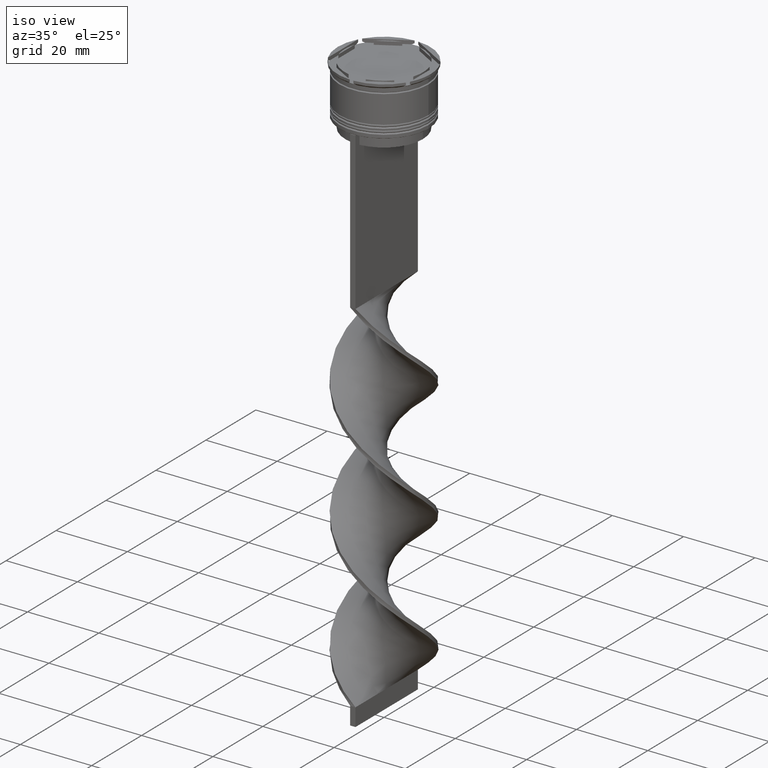
[diagram: clean part render]
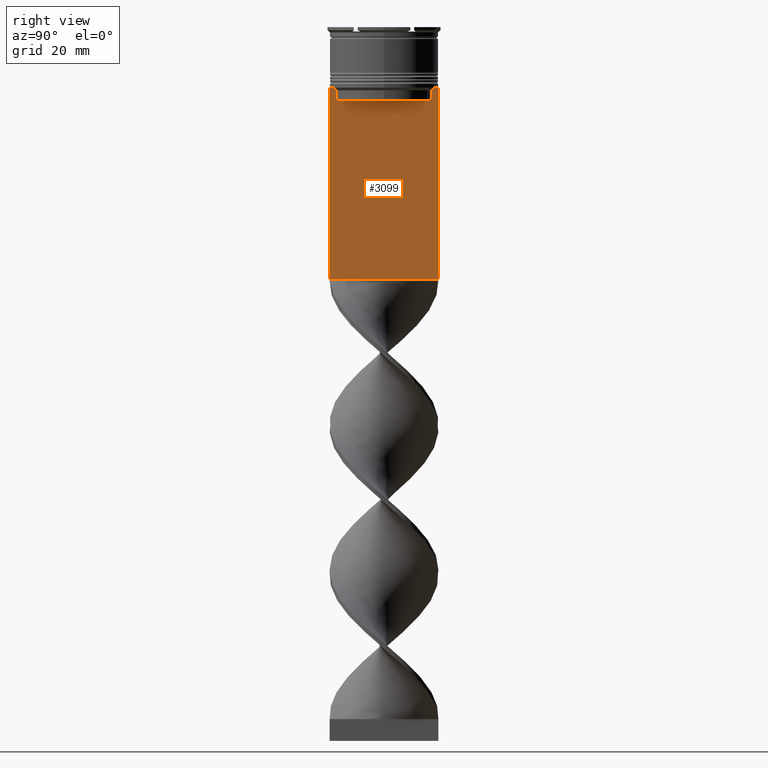
[diagram: tour spotlight — one face highlighted and labeled with its STEP entity id]
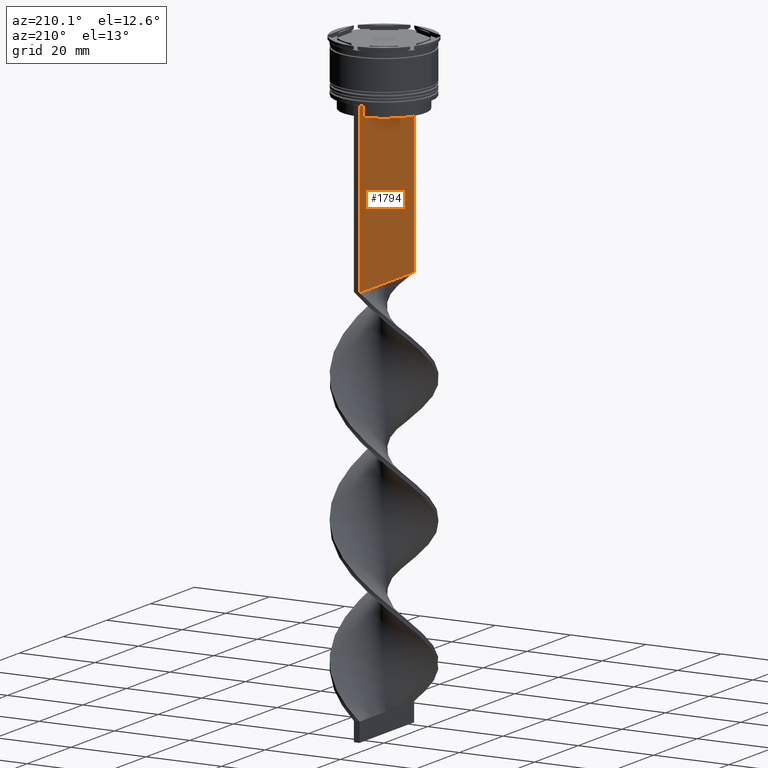
[diagram: tour spotlight — one face highlighted and labeled with its STEP entity id]
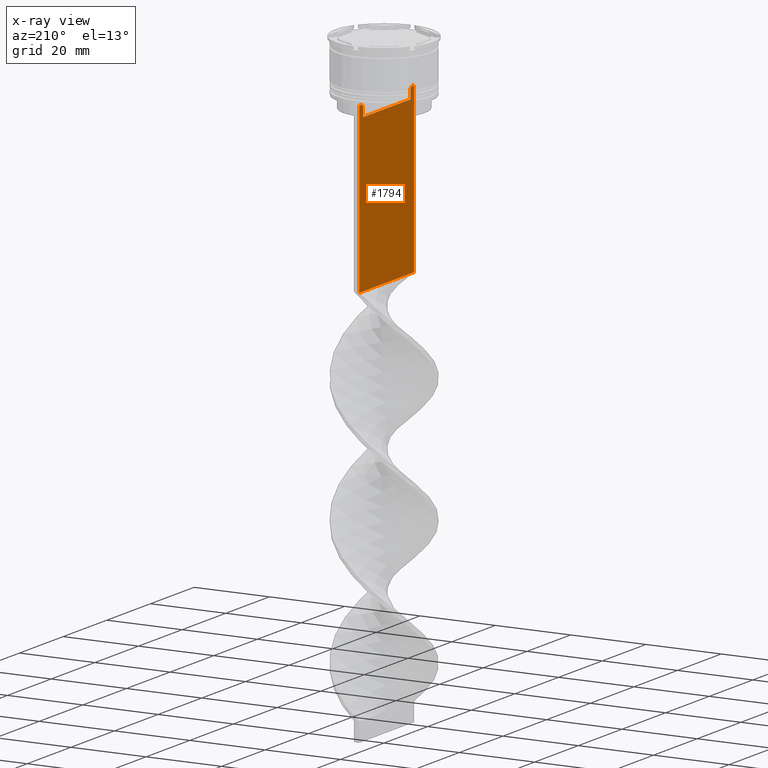
[diagram: x-ray of the same camera — body ghosted, this tour face saturated]
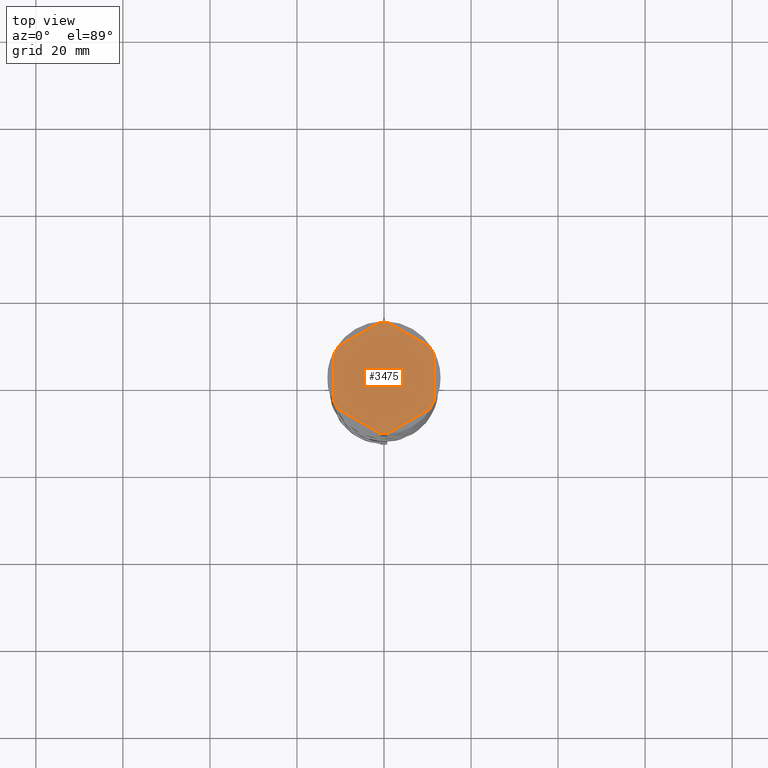
[diagram: tour spotlight — one face highlighted and labeled with its STEP entity id]
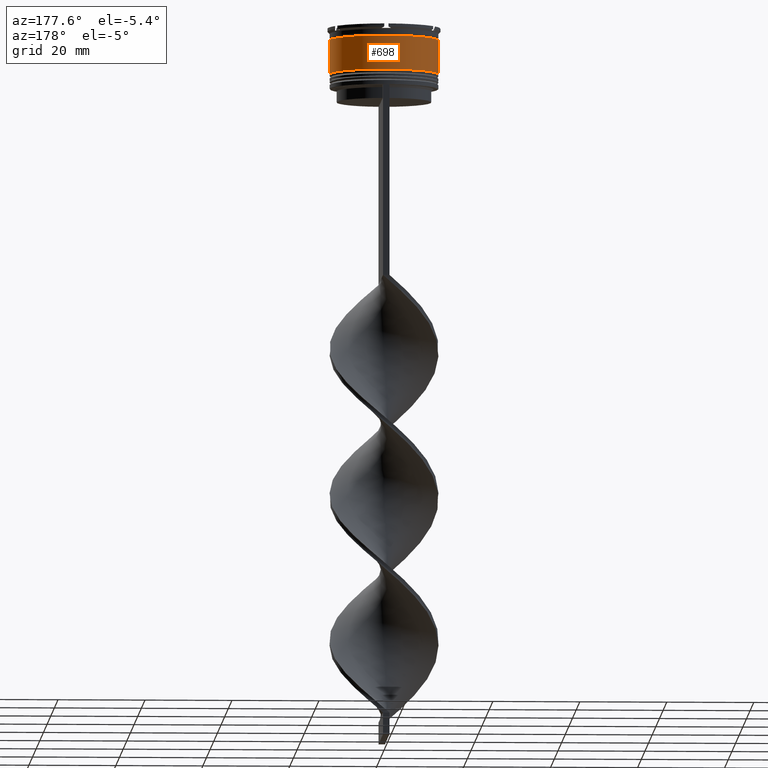
[diagram: tour spotlight — one face highlighted and labeled with its STEP entity id]
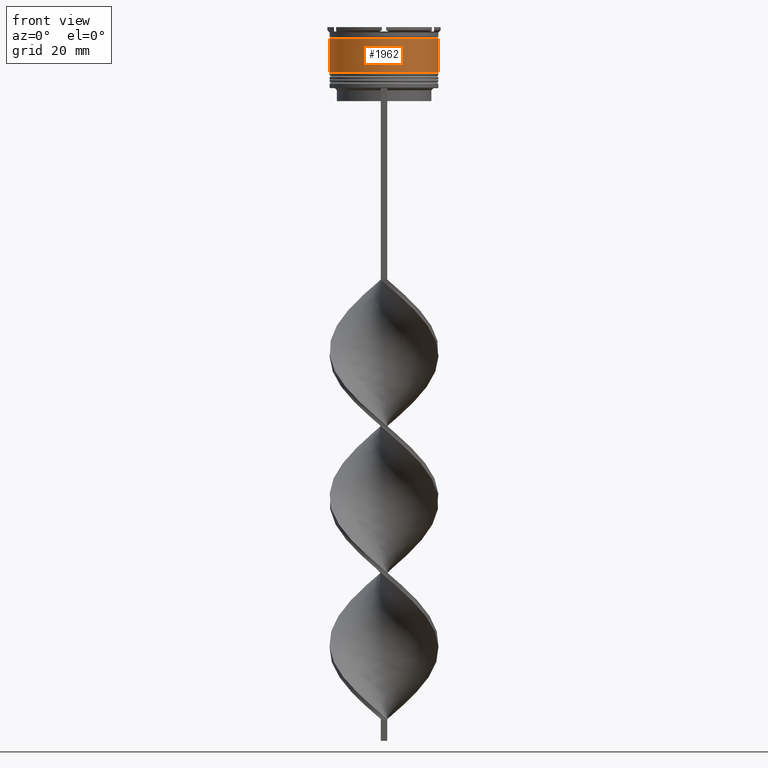
[diagram: tour spotlight — one face highlighted and labeled with its STEP entity id]
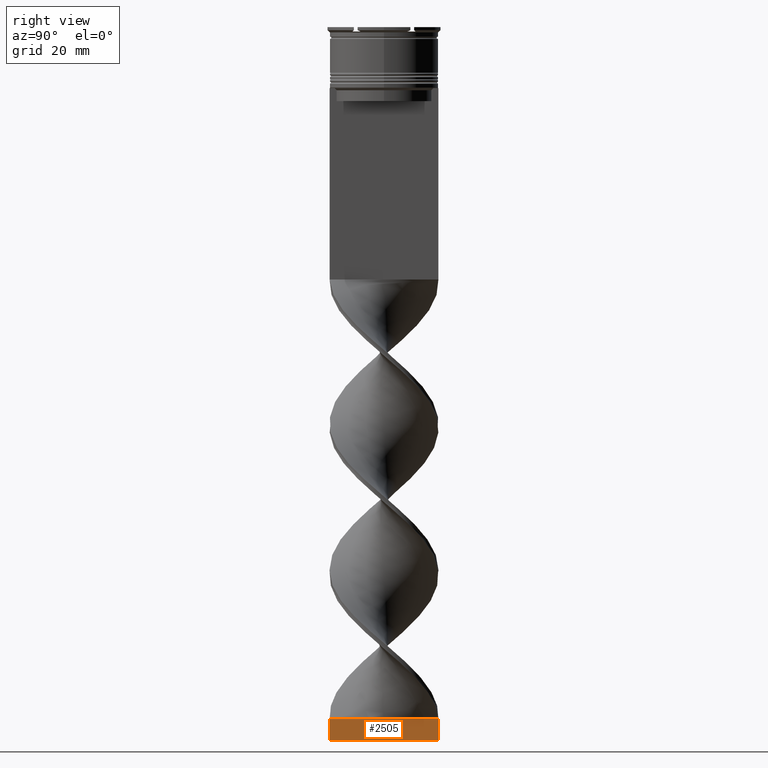
[diagram: tour spotlight — one face highlighted and labeled with its STEP entity id]
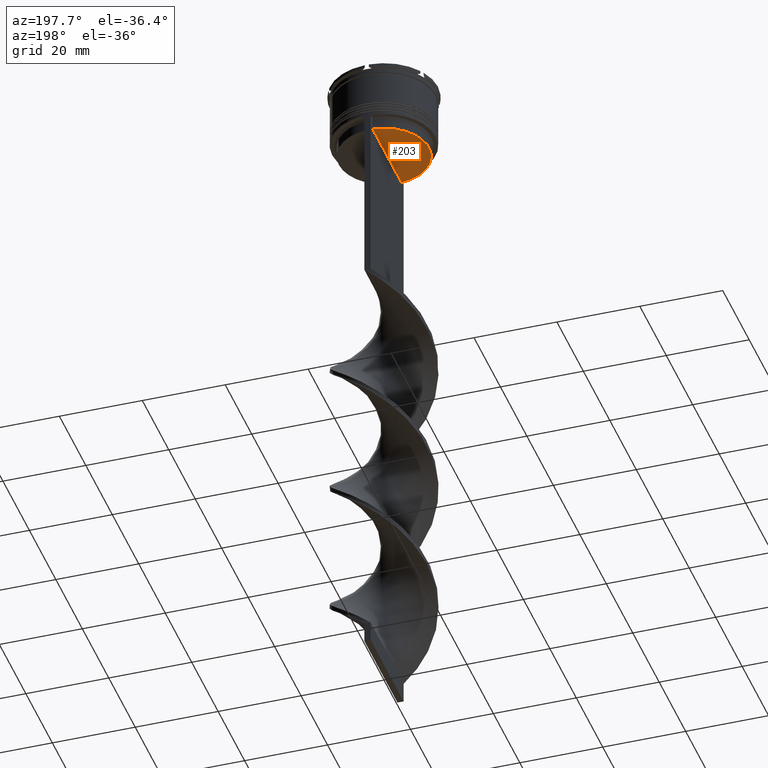
[diagram: tour spotlight — one face highlighted and labeled with its STEP entity id]
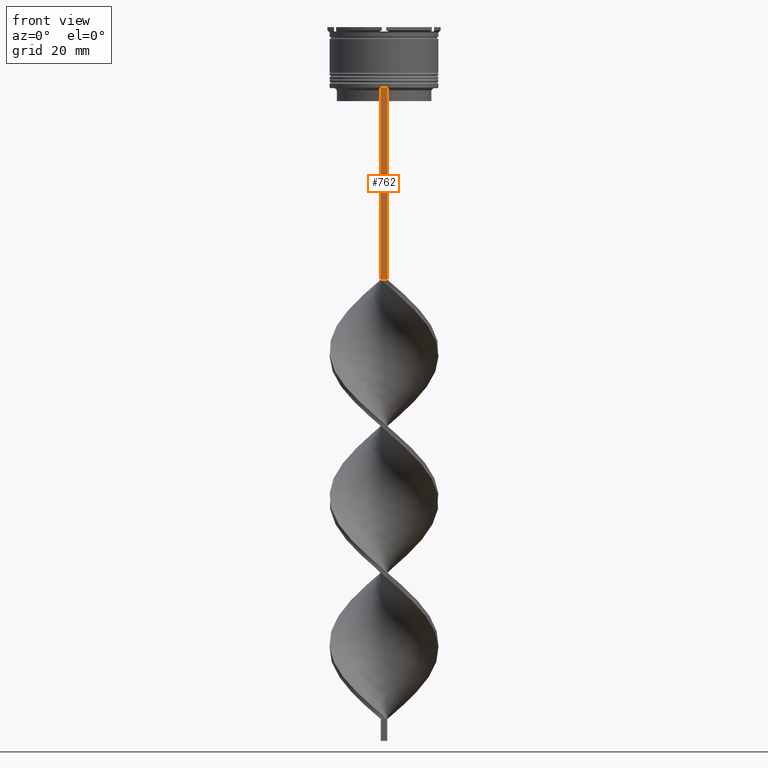
[diagram: tour spotlight — one face highlighted and labeled with its STEP entity id]
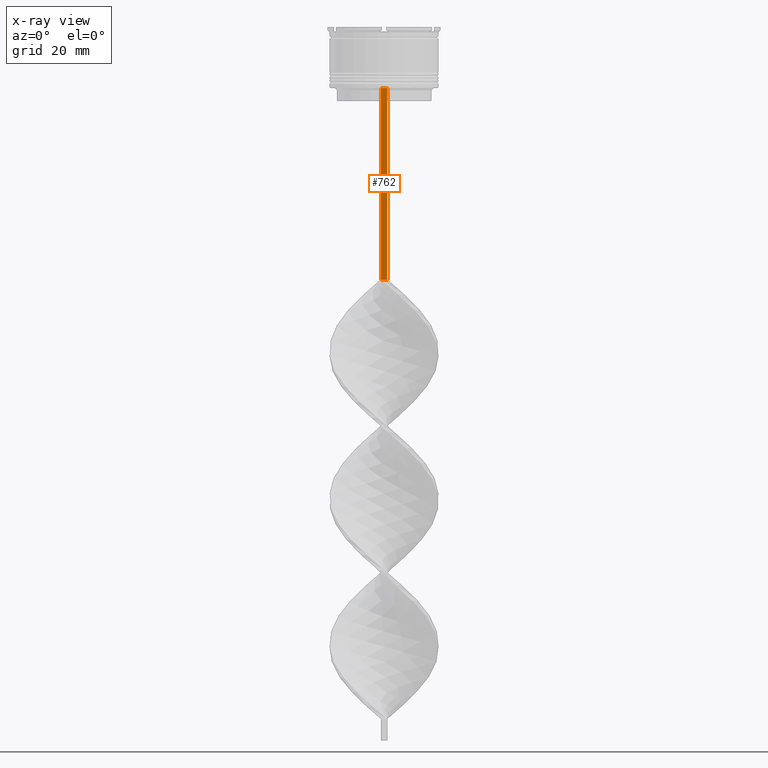
[diagram: x-ray of the same camera — body ghosted, this tour face saturated]
A machine part: a face-by-face anatomy tour. The part has 108 B-rep faces; the first image is the clean iso view, then the 8 largest visible faces are spotlighted one at a time (largest first), each with its STEP entity span.

Face 1 — right view, entity #3099. In plain terms, the highlighted planar face has unit normal (-1, 0, 0).
Definition (entity closure, byte-faithful):
#17 = VECTOR ( 'NONE', #3446, 1000.000000000000000 ) ;
#43 = CARTESIAN_POINT ( 'NONE',  ( 0.7500000000000002220, 10.90000000000000213, -17.00000000000000000 ) ) ;
#73 = DIRECTION ( 'NONE',  ( -0.000000000000000000, -0.000000000000000000, 1.000000000000000000 ) ) ;
#133 = VERTEX_POINT ( 'NONE', #1822 ) ;
#167 = VECTOR ( 'NONE', #1840, 1000.000000000000000 ) ;
#198 = CARTESIAN_POINT ( 'NONE',  ( 0.7500000000000002220, -12.50000000000000000, -58.00000000000000000 ) ) ;
#211 = VECTOR ( 'NONE', #73, 1000.000000000000000 ) ;
#261 = ORIENTED_EDGE ( 'NONE', *, *, #2085, .F. ) ;
#265 = CARTESIAN_POINT ( 'NONE',  ( 0.7500000000000002220, -12.50000000000000000, -14.00000000000000178 ) ) ;
#280 = CARTESIAN_POINT ( 'NONE',  ( 0.7500000000000002220, -11.04122051801870441, -14.33334204001847567 ) ) ;
#389 = VERTEX_POINT ( 'NONE', #1068 ) ;
#391 = CARTESIAN_POINT ( 'NONE',  ( 0.7500000000000002220, -10.87416663473574197, 0.000000000000000000 ) ) ;
#392 = CARTESIAN_POINT ( 'NONE',  ( 0.7500000000000002220, 10.87416663473574197, -14.50000000000000000 ) ) ;
#447 = EDGE_CURVE ( 'NONE', #1578, #2111, #2972, .T. ) ;
#470 = CARTESIAN_POINT ( 'NONE',  ( 0.7500000000000002220, 10.87416663473574197, -14.50000000000000000 ) ) ;
#476 = EDGE_CURVE ( 'NONE', #1862, #1945, #1466, .T. ) ;
#535 = CARTESIAN_POINT ( 'NONE',  ( 0.7500000000000002220, -12.50000000000000000, 11.04495957273638673 ) ) ;
#561 = EDGE_CURVE ( 'NONE', #1945, #133, #767, .T. ) ;
#584 = EDGE_CURVE ( 'NONE', #3859, #3267, #789, .T. ) ;
#597 = ORIENTED_EDGE ( 'NONE', *, *, #780, .T. ) ;
#729 = CARTESIAN_POINT ( 'NONE',  ( 0.7500000000000002220, -10.87416663473574197, -14.50000000000000000 ) ) ;
#767 = LINE ( 'NONE', #198, #1735 ) ;
#780 = EDGE_CURVE ( 'NONE', #2081, #1862, #3128, .T. ) ;
#789 = LINE ( 'NONE', #2044, #1801 ) ;
#800 = EDGE_LOOP ( 'NONE', ( #3537, #2928, #1483, #3903, #1923, #1462, #3112, #597, #2892, #1256, #261, #1996 ) ) ;
#930 = CARTESIAN_POINT ( 'NONE',  ( 0.7500000000000002220, 10.87416663473574197, 0.000000000000000000 ) ) ;
#1030 = VERTEX_POINT ( 'NONE', #4113 ) ;
#1068 = CARTESIAN_POINT ( 'NONE',  ( 0.7500000000000002220, 10.87416663473574019, -17.00000000000000000 ) ) ;
#1105 = CARTESIAN_POINT ( 'NONE',  ( 0.7500000000000002220, 12.50000000000000000, 11.04495957273638673 ) ) ;
#1213 = FACE_OUTER_BOUND ( 'NONE', #800, .T. ) ;
#1218 = CARTESIAN_POINT ( 'NONE',  ( 0.7500000000000002220, -11.37530219378809093, -14.00000000000000178 ) ) ;
#1222 = EDGE_CURVE ( 'NONE', #2054, #389, #3737, .T. ) ;
#1237 = CARTESIAN_POINT ( 'NONE',  ( 0.7500000000000002220, 12.50000000000000000, -14.00000000000000178 ) ) ;
#1256 = ORIENTED_EDGE ( 'NONE', *, *, #561, .T. ) ;
#1297 = CARTESIAN_POINT ( 'NONE',  ( 0.7500000000000002220, -12.50000000000000000, -14.00000000000000178 ) ) ;
#1304 = DIRECTION ( 'NONE',  ( 0.000000000000000000, -1.000000000000000000, 0.000000000000000000 ) ) ;
#1462 = ORIENTED_EDGE ( 'NONE', *, *, #3762, .T. ) ;
#1466 = LINE ( 'NONE', #535, #2195 ) ;
#1483 = ORIENTED_EDGE ( 'NONE', *, *, #1222, .T. ) ;
#1501 = CARTESIAN_POINT ( 'NONE',  ( 0.7500000000000002220, -10.87416663473574019, -17.00000000000000000 ) ) ;
#1512 = CARTESIAN_POINT ( 'NONE',  ( 0.7500000000000002220, -12.50000000000000000, 11.04495957273638673 ) ) ;
#1515 = CARTESIAN_POINT ( 'NONE',  ( 0.7500000000000002220, -12.50000000000000000, -14.00000000000000178 ) ) ;
#1554 = AXIS2_PLACEMENT_3D ( 'NONE', #1512, #2108, #1836 ) ;
#1578 = VERTEX_POINT ( 'NONE', #1501 ) ;
#1691 = CARTESIAN_POINT ( 'NONE',  ( 0.7500000000000002220, -12.50000000000000000, -14.00000000000000178 ) ) ;
#1735 = VECTOR ( 'NONE', #3054, 1000.000000000000000 ) ;
#1801 = VECTOR ( 'NONE', #3013, 1000.000000000000000 ) ;
#1818 = PLANE ( 'NONE',  #1554 ) ;
#1822 = CARTESIAN_POINT ( 'NONE',  ( 0.7500000000000002220, 12.50000000000000000, -58.00000000000000000 ) ) ;
#1836 = DIRECTION ( 'NONE',  ( 0.000000000000000000, 0.000000000000000000, 1.000000000000000000 ) ) ;
#1840 = DIRECTION ( 'NONE',  ( 0.000000000000000000, -1.000000000000000000, 0.000000000000000000 ) ) ;
#1862 = VERTEX_POINT ( 'NONE', #1297 ) ;
#1885 = B_SPLINE_CURVE_WITH_KNOTS ( 'NONE', 3,
 ( #4099, #280, #2515, #1218 ),
 .UNSPECIFIED., .F., .F.,
 ( 4, 4 ),
 ( 0.05009718908159448147, 0.05081156920313959630 ),
 .UNSPECIFIED. ) ;
#1919 = CARTESIAN_POINT ( 'NONE',  ( 0.7500000000000002220, 11.20826531587977648, -14.16667499681701514 ) ) ;
#1923 = ORIENTED_EDGE ( 'NONE', *, *, #447, .T. ) ;
#1939 = VECTOR ( 'NONE', #2305, 1000.000000000000000 ) ;
#1945 = VERTEX_POINT ( 'NONE', #3351 ) ;
#1952 = VECTOR ( 'NONE', #3264, 1000.000000000000000 ) ;
#1996 = ORIENTED_EDGE ( 'NONE', *, *, #584, .T. ) ;
#2044 = CARTESIAN_POINT ( 'NONE',  ( 0.7500000000000002220, -12.50000000000000000, -14.00000000000000178 ) ) ;
#2054 = VERTEX_POINT ( 'NONE', #470 ) ;
#2081 = VERTEX_POINT ( 'NONE', #3001 ) ;
#2085 = EDGE_CURVE ( 'NONE', #3859, #133, #2389, .T. ) ;
#2108 = DIRECTION ( 'NONE',  ( -1.000000000000000000, 0.000000000000000000, 0.000000000000000000 ) ) ;
#2111 = VERTEX_POINT ( 'NONE', #729 ) ;
#2195 = VECTOR ( 'NONE', #2677, 1000.000000000000000 ) ;
#2268 = EDGE_CURVE ( 'NONE', #389, #1578, #3843, .T. ) ;
#2305 = DIRECTION ( 'NONE',  ( 0.000000000000000000, 0.000000000000000000, -1.000000000000000000 ) ) ;
#2339 = VERTEX_POINT ( 'NONE', #2794 ) ;
#2389 = LINE ( 'NONE', #1105, #1939 ) ;
#2515 = CARTESIAN_POINT ( 'NONE',  ( 0.7500000000000002220, -11.20826532207830439, -14.16667499063191826 ) ) ;
#2677 = DIRECTION ( 'NONE',  ( 0.000000000000000000, 0.000000000000000000, -1.000000000000000000 ) ) ;
#2684 = VECTOR ( 'NONE', #1304, 1000.000000000000000 ) ;
#2794 = CARTESIAN_POINT ( 'NONE',  ( 0.7500000000000002220, -11.37530219378809093, -14.00000000000000178 ) ) ;
#2892 = ORIENTED_EDGE ( 'NONE', *, *, #476, .T. ) ;
#2928 = ORIENTED_EDGE ( 'NONE', *, *, #4086, .T. ) ;
#2944 = LINE ( 'NONE', #1691, #1952 ) ;
#2972 = LINE ( 'NONE', #391, #211 ) ;
#3001 = CARTESIAN_POINT ( 'NONE',  ( 0.7500000000000002220, -12.37729776647553059, -14.00000000000000178 ) ) ;
#3013 = DIRECTION ( 'NONE',  ( 0.000000000000000000, -1.000000000000000000, 0.000000000000000000 ) ) ;
#3054 = DIRECTION ( 'NONE',  ( 0.000000000000000000, 1.000000000000000000, 0.000000000000000000 ) ) ;
#3099 = ADVANCED_FACE ( 'NONE', ( #1213 ), #1818, .F. ) ;
#3112 = ORIENTED_EDGE ( 'NONE', *, *, #3352, .T. ) ;
#3128 = LINE ( 'NONE', #265, #3213 ) ;
#3172 = DIRECTION ( 'NONE',  ( 0.000000000000000000, -1.000000000000000000, 0.000000000000000000 ) ) ;
#3213 = VECTOR ( 'NONE', #3172, 1000.000000000000000 ) ;
#3228 = CARTESIAN_POINT ( 'NONE',  ( 0.7500000000000002220, 12.37729776647553059, -14.00000000000000178 ) ) ;
#3264 = DIRECTION ( 'NONE',  ( 0.000000000000000000, -1.000000000000000000, 0.000000000000000000 ) ) ;
#3267 = VERTEX_POINT ( 'NONE', #3228 ) ;
#3351 = CARTESIAN_POINT ( 'NONE',  ( 0.7500000000000002220, -12.50000000000000000, -58.00000000000000000 ) ) ;
#3352 = EDGE_CURVE ( 'NONE', #2339, #2081, #2944, .T. ) ;
#3446 = DIRECTION ( 'NONE',  ( 0.000000000000000000, 0.000000000000000000, -1.000000000000000000 ) ) ;
#3523 = CARTESIAN_POINT ( 'NONE',  ( 0.7500000000000002220, 11.37530219378809093, -14.00000000000000178 ) ) ;
#3537 = ORIENTED_EDGE ( 'NONE', *, *, #3738, .T. ) ;
#3543 = CARTESIAN_POINT ( 'NONE',  ( 0.7500000000000002220, 11.04122051153452055, -14.33334204648729404 ) ) ;
#3650 = B_SPLINE_CURVE_WITH_KNOTS ( 'NONE', 3,
 ( #3523, #1919, #3543, #392 ),
 .UNSPECIFIED., .F., .F.,
 ( 4, 4 ),
 ( 0.01936090553552769281, 0.02006881572333104116 ),
 .UNSPECIFIED. ) ;
#3737 = LINE ( 'NONE', #930, #17 ) ;
#3738 = EDGE_CURVE ( 'NONE', #3267, #1030, #4076, .T. ) ;
#3762 = EDGE_CURVE ( 'NONE', #2111, #2339, #1885, .T. ) ;
#3843 = LINE ( 'NONE', #43, #2684 ) ;
#3859 = VERTEX_POINT ( 'NONE', #1237 ) ;
#3903 = ORIENTED_EDGE ( 'NONE', *, *, #2268, .T. ) ;
#4076 = LINE ( 'NONE', #1515, #167 ) ;
#4086 = EDGE_CURVE ( 'NONE', #1030, #2054, #3650, .T. ) ;
#4099 = CARTESIAN_POINT ( 'NONE',  ( 0.7500000000000002220, -10.87416663473574197, -14.50000000000000000 ) ) ;
#4113 = CARTESIAN_POINT ( 'NONE',  ( 0.7500000000000002220, 11.37530219378809093, -14.00000000000000178 ) ) ;

Face 2 — auxiliary view, entity #1794. An x-ray twin of the same camera follows (body ghosted, this face saturated) — the face is partly hidden behind the body. In plain terms, the highlighted planar face has unit normal (-1, 0, 0).
Definition (entity closure, byte-faithful):
#6 = EDGE_CURVE ( 'NONE', #1071, #2113, #1179, .T. ) ;
#34 = EDGE_LOOP ( 'NONE', ( #854, #1123, #1669, #2372, #474, #4013, #2510, #225, #2790, #2118, #2378, #1729 ) ) ;
#38 = VECTOR ( 'NONE', #993, 1000.000000000000000 ) ;
#50 = CARTESIAN_POINT ( 'NONE',  ( -0.7499999999999997780, -12.37729776647553059, -14.00000000000000178 ) ) ;
#91 = VECTOR ( 'NONE', #3957, 1000.000000000000000 ) ;
#225 = ORIENTED_EDGE ( 'NONE', *, *, #1564, .F. ) ;
#235 = B_SPLINE_CURVE_WITH_KNOTS ( 'NONE', 3,
 ( #2478, #931, #1518, #2192 ),
 .UNSPECIFIED., .F., .F.,
 ( 4, 4 ),
 ( 0.01936090553552769281, 0.02006881572333104116 ),
 .UNSPECIFIED. ) ;
#339 = EDGE_CURVE ( 'NONE', #2436, #3502, #1363, .T. ) ;
#443 = CARTESIAN_POINT ( 'NONE',  ( -0.7499999999999997780, -10.87416663473574374, 0.000000000000000000 ) ) ;
#474 = ORIENTED_EDGE ( 'NONE', *, *, #6, .F. ) ;
#624 = CARTESIAN_POINT ( 'NONE',  ( -0.7499999999999997780, -12.50000000000000000, -14.00000000000000178 ) ) ;
#694 = VERTEX_POINT ( 'NONE', #4144 ) ;
#742 = LINE ( 'NONE', #2231, #38 ) ;
#792 = VERTEX_POINT ( 'NONE', #2806 ) ;
#793 = CARTESIAN_POINT ( 'NONE',  ( -0.7499999999999997780, -12.50000000000000000, 11.04495957273638673 ) ) ;
#833 = VECTOR ( 'NONE', #3366, 1000.000000000000000 ) ;
#854 = ORIENTED_EDGE ( 'NONE', *, *, #1549, .F. ) ;
#931 = CARTESIAN_POINT ( 'NONE',  ( -0.7499999999999997780, 11.20826531587977648, -14.16667499681701514 ) ) ;
#976 = FACE_OUTER_BOUND ( 'NONE', #34, .T. ) ;
#993 = DIRECTION ( 'NONE',  ( 0.000000000000000000, 0.000000000000000000, -1.000000000000000000 ) ) ;
#998 = EDGE_CURVE ( 'NONE', #2851, #3421, #2919, .T. ) ;
#1014 = DIRECTION ( 'NONE',  ( 0.000000000000000000, -1.000000000000000000, 0.000000000000000000 ) ) ;
#1057 = LINE ( 'NONE', #1558, #1481 ) ;
#1058 = CARTESIAN_POINT ( 'NONE',  ( -0.7499999999999997780, -12.50000000000000000, -14.00000000000000178 ) ) ;
#1071 = VERTEX_POINT ( 'NONE', #3614 ) ;
#1123 = ORIENTED_EDGE ( 'NONE', *, *, #339, .F. ) ;
#1126 = EDGE_CURVE ( 'NONE', #3855, #1358, #1057, .T. ) ;
#1179 = LINE ( 'NONE', #1493, #2536 ) ;
#1227 = EDGE_CURVE ( 'NONE', #3421, #2518, #2470, .T. ) ;
#1347 = CARTESIAN_POINT ( 'NONE',  ( -0.7499999999999997780, 12.50000000000000000, -58.00000000000000000 ) ) ;
#1358 = VERTEX_POINT ( 'NONE', #2535 ) ;
#1363 = LINE ( 'NONE', #2251, #3474 ) ;
#1471 = DIRECTION ( 'NONE',  ( 0.000000000000000000, 1.000000000000000000, 0.000000000000000000 ) ) ;
#1481 = VECTOR ( 'NONE', #3169, 1000.000000000000000 ) ;
#1485 = LINE ( 'NONE', #2105, #1878 ) ;
#1493 = CARTESIAN_POINT ( 'NONE',  ( -0.7499999999999997780, -12.50000000000000000, -58.00000000000000000 ) ) ;
#1518 = CARTESIAN_POINT ( 'NONE',  ( -0.7499999999999997780, 11.04122051153452055, -14.33334204648729582 ) ) ;
#1531 = CARTESIAN_POINT ( 'NONE',  ( -0.7499999999999997780, 10.87416663473574374, -14.50000000000000000 ) ) ;
#1549 = EDGE_CURVE ( 'NONE', #3502, #3855, #235, .T. ) ;
#1558 = CARTESIAN_POINT ( 'NONE',  ( -0.7499999999999997780, 10.87416663473574374, 0.000000000000000000 ) ) ;
#1564 = EDGE_CURVE ( 'NONE', #2518, #3409, #3482, .T. ) ;
#1577 = PLANE ( 'NONE',  #3901 ) ;
#1669 = ORIENTED_EDGE ( 'NONE', *, *, #2313, .F. ) ;
#1729 = ORIENTED_EDGE ( 'NONE', *, *, #1126, .F. ) ;
#1746 = LINE ( 'NONE', #1058, #91 ) ;
#1788 = CARTESIAN_POINT ( 'NONE',  ( -0.7499999999999997780, -10.87416663473574374, -14.50000000000000000 ) ) ;
#1794 = ADVANCED_FACE ( 'NONE', ( #976 ), #1577, .T. ) ;
#1807 = VECTOR ( 'NONE', #4044, 1000.000000000000000 ) ;
#1878 = VECTOR ( 'NONE', #2815, 1000.000000000000000 ) ;
#1883 = CARTESIAN_POINT ( 'NONE',  ( -0.7499999999999997780, -10.87416663473574374, -14.50000000000000000 ) ) ;
#1941 = DIRECTION ( 'NONE',  ( 0.000000000000000000, -1.000000000000000000, 0.000000000000000000 ) ) ;
#2101 = EDGE_CURVE ( 'NONE', #3409, #792, #1746, .T. ) ;
#2105 = CARTESIAN_POINT ( 'NONE',  ( -0.7499999999999997780, -12.50000000000000000, -14.00000000000000178 ) ) ;
#2113 = VERTEX_POINT ( 'NONE', #1347 ) ;
#2118 = ORIENTED_EDGE ( 'NONE', *, *, #998, .F. ) ;
#2166 = CARTESIAN_POINT ( 'NONE',  ( -0.7499999999999997780, -10.87416663473574019, -17.00000000000000000 ) ) ;
#2192 = CARTESIAN_POINT ( 'NONE',  ( -0.7499999999999997780, 10.87416663473574374, -14.50000000000000000 ) ) ;
#2226 = CARTESIAN_POINT ( 'NONE',  ( -0.7499999999999997780, 12.37729776647553059, -14.00000000000000178 ) ) ;
#2231 = CARTESIAN_POINT ( 'NONE',  ( -0.7499999999999997780, 12.50000000000000000, 11.04495957273638673 ) ) ;
#2234 = CARTESIAN_POINT ( 'NONE',  ( -0.7499999999999997780, -12.50000000000000000, 11.04495957273638673 ) ) ;
#2251 = CARTESIAN_POINT ( 'NONE',  ( -0.7499999999999997780, -12.50000000000000000, -14.00000000000000178 ) ) ;
#2252 = CARTESIAN_POINT ( 'NONE',  ( -0.7499999999999997780, 10.90000000000000213, -17.00000000000000000 ) ) ;
#2313 = EDGE_CURVE ( 'NONE', #694, #2436, #1485, .T. ) ;
#2369 = LINE ( 'NONE', #793, #833 ) ;
#2372 = ORIENTED_EDGE ( 'NONE', *, *, #4074, .T. ) ;
#2378 = ORIENTED_EDGE ( 'NONE', *, *, #4106, .F. ) ;
#2393 = CARTESIAN_POINT ( 'NONE',  ( -0.7499999999999997780, -11.37530219378809093, -14.00000000000000178 ) ) ;
#2436 = VERTEX_POINT ( 'NONE', #2226 ) ;
#2470 = B_SPLINE_CURVE_WITH_KNOTS ( 'NONE', 3,
 ( #1883, #4061, #2768, #2784 ),
 .UNSPECIFIED., .F., .F.,
 ( 4, 4 ),
 ( 0.05009718908159448147, 0.05081156920313960323 ),
 .UNSPECIFIED. ) ;
#2478 = CARTESIAN_POINT ( 'NONE',  ( -0.7499999999999997780, 11.37530219378809093, -14.00000000000000178 ) ) ;
#2510 = ORIENTED_EDGE ( 'NONE', *, *, #2101, .F. ) ;
#2518 = VERTEX_POINT ( 'NONE', #2393 ) ;
#2535 = CARTESIAN_POINT ( 'NONE',  ( -0.7499999999999997780, 10.87416663473574019, -17.00000000000000000 ) ) ;
#2536 = VECTOR ( 'NONE', #1471, 1000.000000000000000 ) ;
#2768 = CARTESIAN_POINT ( 'NONE',  ( -0.7499999999999997780, -11.20826532207830439, -14.16667499063191471 ) ) ;
#2784 = CARTESIAN_POINT ( 'NONE',  ( -0.7499999999999997780, -11.37530219378809093, -14.00000000000000178 ) ) ;
#2790 = ORIENTED_EDGE ( 'NONE', *, *, #1227, .F. ) ;
#2806 = CARTESIAN_POINT ( 'NONE',  ( -0.7499999999999997780, -12.50000000000000000, -14.00000000000000178 ) ) ;
#2815 = DIRECTION ( 'NONE',  ( 0.000000000000000000, -1.000000000000000000, 0.000000000000000000 ) ) ;
#2850 = DIRECTION ( 'NONE',  ( 0.000000000000000000, 0.000000000000000000, 1.000000000000000000 ) ) ;
#2851 = VERTEX_POINT ( 'NONE', #2166 ) ;
#2919 = LINE ( 'NONE', #443, #4024 ) ;
#2936 = DIRECTION ( 'NONE',  ( -0.000000000000000000, -0.000000000000000000, 1.000000000000000000 ) ) ;
#3149 = CARTESIAN_POINT ( 'NONE',  ( -0.7499999999999997780, 11.37530219378809093, -14.00000000000000178 ) ) ;
#3169 = DIRECTION ( 'NONE',  ( 0.000000000000000000, 0.000000000000000000, -1.000000000000000000 ) ) ;
#3366 = DIRECTION ( 'NONE',  ( 0.000000000000000000, 0.000000000000000000, -1.000000000000000000 ) ) ;
#3409 = VERTEX_POINT ( 'NONE', #50 ) ;
#3421 = VERTEX_POINT ( 'NONE', #1788 ) ;
#3474 = VECTOR ( 'NONE', #1941, 1000.000000000000000 ) ;
#3482 = LINE ( 'NONE', #624, #1807 ) ;
#3502 = VERTEX_POINT ( 'NONE', #3149 ) ;
#3525 = DIRECTION ( 'NONE',  ( -1.000000000000000000, 0.000000000000000000, 0.000000000000000000 ) ) ;
#3614 = CARTESIAN_POINT ( 'NONE',  ( -0.7499999999999997780, -12.50000000000000000, -58.00000000000000000 ) ) ;
#3642 = VECTOR ( 'NONE', #1014, 1000.000000000000000 ) ;
#3709 = EDGE_CURVE ( 'NONE', #792, #1071, #2369, .T. ) ;
#3855 = VERTEX_POINT ( 'NONE', #1531 ) ;
#3865 = LINE ( 'NONE', #2252, #3642 ) ;
#3901 = AXIS2_PLACEMENT_3D ( 'NONE', #2234, #3525, #2850 ) ;
#3957 = DIRECTION ( 'NONE',  ( 0.000000000000000000, -1.000000000000000000, 0.000000000000000000 ) ) ;
#4013 = ORIENTED_EDGE ( 'NONE', *, *, #3709, .F. ) ;
#4024 = VECTOR ( 'NONE', #2936, 1000.000000000000000 ) ;
#4044 = DIRECTION ( 'NONE',  ( 0.000000000000000000, -1.000000000000000000, 0.000000000000000000 ) ) ;
#4061 = CARTESIAN_POINT ( 'NONE',  ( -0.7499999999999997780, -11.04122051801870619, -14.33334204001847745 ) ) ;
#4074 = EDGE_CURVE ( 'NONE', #694, #2113, #742, .T. ) ;
#4106 = EDGE_CURVE ( 'NONE', #1358, #2851, #3865, .T. ) ;
#4144 = CARTESIAN_POINT ( 'NONE',  ( -0.7499999999999997780, 12.50000000000000000, -14.00000000000000178 ) ) ;

Face 3 — top view, entity #3475. In plain terms, the highlighted planar face has unit normal (0, 0, 1).
Definition (entity closure, byte-faithful):
#3 = CARTESIAN_POINT ( 'NONE',  ( 10.49999999999999289, -6.062177826491073063, -1.000000000000000888 ) ) ;
#13 = CARTESIAN_POINT ( 'NONE',  ( 0.000000000000000000, 0.000000000000000000, -1.000000000000000000 ) ) ;
#37 = CARTESIAN_POINT ( 'NONE',  ( 0.000000000000000000, 0.000000000000000000, -1.000000000000000000 ) ) ;
#72 = AXIS2_PLACEMENT_3D ( 'NONE', #971, #895, #4121 ) ;
#87 = EDGE_CURVE ( 'NONE', #2245, #525, #268, .T. ) ;
#92 = CIRCLE ( 'NONE', #1280, 11.00000000000000000 ) ;
#114 = VERTEX_POINT ( 'NONE', #3813 ) ;
#143 = LINE ( 'NONE', #3276, #2873 ) ;
#148 = EDGE_CURVE ( 'NONE', #366, #4123, #4089, .T. ) ;
#159 = CIRCLE ( 'NONE', #2486, 11.00000000000000000 ) ;
#226 = LINE ( 'NONE', #2456, #2136 ) ;
#247 = EDGE_CURVE ( 'NONE', #2785, #1804, #1337, .T. ) ;
#268 = CIRCLE ( 'NONE', #72, 11.00000000000000000 ) ;
#274 = VECTOR ( 'NONE', #1983, 1000.000000000000000 ) ;
#324 = DIRECTION ( 'NONE',  ( 1.000000000000000000, 0.000000000000000000, 0.000000000000000000 ) ) ;
#331 = FACE_BOUND ( 'NONE', #2358, .T. ) ;
#343 = AXIS2_PLACEMENT_3D ( 'NONE', #3315, #1736, #2427 ) ;
#366 = VERTEX_POINT ( 'NONE', #3231 ) ;
#373 = LINE ( 'NONE', #1364, #2361 ) ;
#377 = CARTESIAN_POINT ( 'NONE',  ( 8.089454172900138573, 7.453907108661105063, -1.000000000000000888 ) ) ;
#397 = EDGE_LOOP ( 'NONE', ( #663, #2904 ) ) ;
#398 = CARTESIAN_POINT ( 'NONE',  ( -11.50000000000000000, 5.388877434122992582, -1.000000000000000000 ) ) ;
#422 = VERTEX_POINT ( 'NONE', #1675 ) ;
#432 = AXIS2_PLACEMENT_3D ( 'NONE', #1233, #674, #612 ) ;
#434 = VECTOR ( 'NONE', #1846, 999.9999999999998863 ) ;
#466 = ORIENTED_EDGE ( 'NONE', *, *, #3969, .F. ) ;
#492 = ORIENTED_EDGE ( 'NONE', *, *, #721, .F. ) ;
#493 = VECTOR ( 'NONE', #4117, 1000.000000000000000 ) ;
#514 = EDGE_CURVE ( 'NONE', #3068, #3256, #2737, .T. ) ;
#525 = VERTEX_POINT ( 'NONE', #1427 ) ;
#555 = DIRECTION ( 'NONE',  ( 1.000000000000000000, 0.000000000000000000, 0.000000000000000000 ) ) ;
#557 = CARTESIAN_POINT ( 'NONE',  ( -10.49999999999999822, 3.278719262151000624, -1.000000000000000888 ) ) ;
#588 = CARTESIAN_POINT ( 'NONE',  ( 10.49999999999999467, 6.062177826491072175, -1.000000000000000888 ) ) ;
#603 = CARTESIAN_POINT ( 'NONE',  ( 0.000000000000000000, 0.000000000000000000, -1.000000000000000000 ) ) ;
#611 = AXIS2_PLACEMENT_3D ( 'NONE', #2621, #2302, #1724 ) ;
#612 = DIRECTION ( 'NONE',  ( 1.000000000000000000, 0.000000000000000000, 0.000000000000000000 ) ) ;
#663 = ORIENTED_EDGE ( 'NONE', *, *, #87, .F. ) ;
#674 = DIRECTION ( 'NONE',  ( -0.000000000000000000, -0.000000000000000000, -1.000000000000000000 ) ) ;
#677 = DIRECTION ( 'NONE',  ( 0.000000000000000000, 0.000000000000000000, 1.000000000000000000 ) ) ;
#692 = AXIS2_PLACEMENT_3D ( 'NONE', #37, #677, #1611 ) ;
#706 = DIRECTION ( 'NONE',  ( 1.000000000000000000, -1.776356839400250465E-14, 0.000000000000000000 ) ) ;
#721 = EDGE_CURVE ( 'NONE', #1804, #1320, #2333, .T. ) ;
#852 = EDGE_LOOP ( 'NONE', ( #1813, #3460 ) ) ;
#895 = DIRECTION ( 'NONE',  ( 0.000000000000000000, 0.000000000000000000, 1.000000000000000000 ) ) ;
#897 = ORIENTED_EDGE ( 'NONE', *, *, #2034, .T. ) ;
#898 = CARTESIAN_POINT ( 'NONE',  ( -11.50000000000000000, -6.639528095680696573, -1.000000000000000000 ) ) ;
#904 = FACE_BOUND ( 'NONE', #852, .T. ) ;
#911 = CARTESIAN_POINT ( 'NONE',  ( 0.000000000000000000, 0.000000000000000000, -1.000000000000000000 ) ) ;
#934 = DIRECTION ( 'NONE',  ( 0.000000000000000000, 0.000000000000000000, 1.000000000000000000 ) ) ;
#940 = EDGE_CURVE ( 'NONE', #4123, #366, #143, .T. ) ;
#951 = VERTEX_POINT ( 'NONE', #398 ) ;
#957 = CARTESIAN_POINT ( 'NONE',  ( 11.49999999999999822, 5.388877434122992582, -1.000000000000000000 ) ) ;
#968 = VERTEX_POINT ( 'NONE', #377 ) ;
#971 = CARTESIAN_POINT ( 'NONE',  ( 0.000000000000000000, 0.000000000000000000, -1.000000000000000000 ) ) ;
#988 = VERTEX_POINT ( 'NONE', #1660 ) ;
#1008 = ORIENTED_EDGE ( 'NONE', *, *, #3584, .F. ) ;
#1012 = EDGE_CURVE ( 'NONE', #968, #1607, #3687, .T. ) ;
#1017 = VECTOR ( 'NONE', #3489, 1000.000000000000000 ) ;
#1046 = VERTEX_POINT ( 'NONE', #1605 ) ;
#1049 = DIRECTION ( 'NONE',  ( -0.8660254037844384856, 0.5000000000000002220, 0.000000000000000000 ) ) ;
#1089 = ORIENTED_EDGE ( 'NONE', *, *, #4042, .T. ) ;
#1166 = EDGE_LOOP ( 'NONE', ( #2730, #3171 ) ) ;
#1168 = CARTESIAN_POINT ( 'NONE',  ( -1.083095244168783333, 12.65373086058254160, -1.000000000000000000 ) ) ;
#1172 = EDGE_CURVE ( 'NONE', #3068, #3532, #226, .T. ) ;
#1199 = LINE ( 'NONE', #898, #2675 ) ;
#1225 = FACE_BOUND ( 'NONE', #1166, .T. ) ;
#1231 = DIRECTION ( 'NONE',  ( 0.000000000000000000, 0.000000000000000000, 1.000000000000000000 ) ) ;
#1233 = CARTESIAN_POINT ( 'NONE',  ( 0.000000000000000000, 0.000000000000000000, -1.000000000000000000 ) ) ;
#1238 = VERTEX_POINT ( 'NONE', #2133 ) ;
#1243 = FACE_BOUND ( 'NONE', #2306, .T. ) ;
#1250 = EDGE_CURVE ( 'NONE', #2006, #1238, #1199, .T. ) ;
#1252 = CARTESIAN_POINT ( 'NONE',  ( 0.000000000000000000, 0.000000000000000000, -1.000000000000000000 ) ) ;
#1260 = CARTESIAN_POINT ( 'NONE',  ( 0.000000000000000000, 0.000000000000000000, -1.000000000000000000 ) ) ;
#1280 = AXIS2_PLACEMENT_3D ( 'NONE', #2528, #3831, #3224 ) ;
#1283 = DIRECTION ( 'NONE',  ( 1.000000000000000000, 0.000000000000000000, 0.000000000000000000 ) ) ;
#1303 = CARTESIAN_POINT ( 'NONE',  ( -11.00000000000000000, 0.000000000000000000, -1.000000000000000000 ) ) ;
#1319 = DIRECTION ( 'NONE',  ( -0.000000000000000000, -0.000000000000000000, -1.000000000000000000 ) ) ;
#1320 = VERTEX_POINT ( 'NONE', #1303 ) ;
#1333 = VERTEX_POINT ( 'NONE', #4140 ) ;
#1337 = LINE ( 'NONE', #3292, #274 ) ;
#1364 = CARTESIAN_POINT ( 'NONE',  ( 11.50000000000000000, 6.639528095680698350, -1.000000000000000000 ) ) ;
#1404 = EDGE_CURVE ( 'NONE', #525, #2245, #2791, .T. ) ;
#1427 = CARTESIAN_POINT ( 'NONE',  ( 10.49999999999999467, 3.278719262151012170, -1.000000000000000888 ) ) ;
#1444 = ORIENTED_EDGE ( 'NONE', *, *, #2417, .F. ) ;
#1476 = LINE ( 'NONE', #3126, #1811 ) ;
#1499 = EDGE_CURVE ( 'NONE', #1333, #3561, #1476, .T. ) ;
#1521 = FACE_BOUND ( 'NONE', #2216, .T. ) ;
#1565 = LINE ( 'NONE', #588, #434 ) ;
#1571 = ORIENTED_EDGE ( 'NONE', *, *, #3208, .F. ) ;
#1605 = CARTESIAN_POINT ( 'NONE',  ( -11.50000000000000000, -5.388877434122992582, -1.000000000000000000 ) ) ;
#1607 = VERTEX_POINT ( 'NONE', #2158 ) ;
#1611 = DIRECTION ( 'NONE',  ( 1.000000000000000000, 0.000000000000000000, 0.000000000000000000 ) ) ;
#1618 = AXIS2_PLACEMENT_3D ( 'NONE', #3259, #3233, #3588 ) ;
#1660 = CARTESIAN_POINT ( 'NONE',  ( -2.410545827099876082, -10.73262637081210435, -1.000000000000000888 ) ) ;
#1671 = EDGE_CURVE ( 'NONE', #988, #114, #2895, .T. ) ;
#1673 = EDGE_CURVE ( 'NONE', #3445, #2018, #2804, .T. ) ;
#1675 = CARTESIAN_POINT ( 'NONE',  ( -10.41690475583121689, 7.264853426459546348, -1.000000000000000000 ) ) ;
#1685 = CARTESIAN_POINT ( 'NONE',  ( 0.000000000000000000, 13.27905619136138959, -1.000000000000000000 ) ) ;
#1724 = DIRECTION ( 'NONE',  ( 1.000000000000000000, 0.000000000000000000, 0.000000000000000000 ) ) ;
#1736 = DIRECTION ( 'NONE',  ( -0.000000000000000000, -0.000000000000000000, -1.000000000000000000 ) ) ;
#1742 = AXIS2_PLACEMENT_3D ( 'NONE', #3187, #2538, #2020 ) ;
#1764 = ORIENTED_EDGE ( 'NONE', *, *, #2570, .F. ) ;
#1783 = ORIENTED_EDGE ( 'NONE', *, *, #1673, .F. ) ;
#1804 = VERTEX_POINT ( 'NONE', #557 ) ;
#1811 = VECTOR ( 'NONE', #1828, 1000.000000000000000 ) ;
#1813 = ORIENTED_EDGE ( 'NONE', *, *, #148, .F. ) ;
#1828 = DIRECTION ( 'NONE',  ( 0.8660254037844385966, 0.5000000000000001110, -0.000000000000000000 ) ) ;
#1846 = DIRECTION ( 'NONE',  ( 0.8660254037844387076, -0.4999999999999999445, 0.000000000000000000 ) ) ;
#1881 = CARTESIAN_POINT ( 'NONE',  ( 1.083095244168774673, -12.65373086058253982, -1.000000000000000000 ) ) ;
#1884 = EDGE_CURVE ( 'NONE', #951, #1046, #3860, .T. ) ;
#1890 = PLANE ( 'NONE',  #2624 ) ;
#1903 = CARTESIAN_POINT ( 'NONE',  ( 10.49999999999999467, -3.278719262151014835, -1.000000000000000888 ) ) ;
#1920 = ORIENTED_EDGE ( 'NONE', *, *, #1012, .F. ) ;
#1938 = DIRECTION ( 'NONE',  ( -0.000000000000000000, -0.000000000000000000, -1.000000000000000000 ) ) ;
#1983 = DIRECTION ( 'NONE',  ( 0.000000000000000000, 1.000000000000000000, 0.000000000000000000 ) ) ;
#1998 = CARTESIAN_POINT ( 'NONE',  ( -10.49999999999999822, -3.278719262151000624, -1.000000000000000888 ) ) ;
#2006 = VERTEX_POINT ( 'NONE', #3967 ) ;
#2007 = DIRECTION ( 'NONE',  ( -0.8660254037844387076, -0.4999999999999999445, 0.000000000000000000 ) ) ;
#2018 = VERTEX_POINT ( 'NONE', #3035 ) ;
#2020 = DIRECTION ( 'NONE',  ( 1.000000000000000000, 1.243449787580175325E-14, 0.000000000000000000 ) ) ;
#2028 = CARTESIAN_POINT ( 'NONE',  ( 10.41690475583121156, 7.264853426459550789, -1.000000000000000000 ) ) ;
#2034 = EDGE_CURVE ( 'NONE', #3445, #422, #3661, .T. ) ;
#2058 = ORIENTED_EDGE ( 'NONE', *, *, #1884, .T. ) ;
#2061 = EDGE_CURVE ( 'NONE', #3920, #3256, #3342, .T. ) ;
#2133 = CARTESIAN_POINT ( 'NONE',  ( -1.083095244168779780, -12.65373086058253982, -1.000000000000000000 ) ) ;
#2136 = VECTOR ( 'NONE', #2748, 1000.000000000000000 ) ;
#2158 = CARTESIAN_POINT ( 'NONE',  ( 2.410545827099861871, 10.73262637081210791, -1.000000000000000888 ) ) ;
#2191 = DIRECTION ( 'NONE',  ( 0.8660254037844387076, -0.4999999999999997780, 0.000000000000000000 ) ) ;
#2216 = EDGE_LOOP ( 'NONE', ( #1920, #1008 ) ) ;
#2245 = VERTEX_POINT ( 'NONE', #1903 ) ;
#2302 = DIRECTION ( 'NONE',  ( 0.000000000000000000, 0.000000000000000000, 1.000000000000000000 ) ) ;
#2306 = EDGE_LOOP ( 'NONE', ( #492, #3388, #1444 ) ) ;
#2333 = CIRCLE ( 'NONE', #3549, 11.00000000000000000 ) ;
#2358 = EDGE_LOOP ( 'NONE', ( #1764, #4104 ) ) ;
#2361 = VECTOR ( 'NONE', #3295, 1000.000000000000000 ) ;
#2373 = EDGE_CURVE ( 'NONE', #114, #988, #159, .T. ) ;
#2417 = EDGE_CURVE ( 'NONE', #1320, #2785, #92, .T. ) ;
#2427 = DIRECTION ( 'NONE',  ( 1.000000000000000000, 0.000000000000000000, 0.000000000000000000 ) ) ;
#2453 = ORIENTED_EDGE ( 'NONE', *, *, #514, .F. ) ;
#2456 = CARTESIAN_POINT ( 'NONE',  ( 11.49999999999999822, -6.639528095680694797, -1.000000000000000000 ) ) ;
#2486 = AXIS2_PLACEMENT_3D ( 'NONE', #911, #1231, #555 ) ;
#2528 = CARTESIAN_POINT ( 'NONE',  ( 0.000000000000000000, 0.000000000000000000, -1.000000000000000000 ) ) ;
#2538 = DIRECTION ( 'NONE',  ( -0.000000000000000000, -0.000000000000000000, -1.000000000000000000 ) ) ;
#2555 = CIRCLE ( 'NONE', #692, 11.00000000000000000 ) ;
#2570 = EDGE_CURVE ( 'NONE', #3561, #1333, #2555, .T. ) ;
#2620 = ORIENTED_EDGE ( 'NONE', *, *, #1172, .T. ) ;
#2621 = CARTESIAN_POINT ( 'NONE',  ( 0.000000000000000000, 0.000000000000000000, -1.000000000000000000 ) ) ;
#2624 = AXIS2_PLACEMENT_3D ( 'NONE', #603, #3786, #4145 ) ;
#2626 = VERTEX_POINT ( 'NONE', #2028 ) ;
#2646 = ORIENTED_EDGE ( 'NONE', *, *, #2061, .T. ) ;
#2675 = VECTOR ( 'NONE', #2191, 1000.000000000000227 ) ;
#2685 = ORIENTED_EDGE ( 'NONE', *, *, #1250, .T. ) ;
#2730 = ORIENTED_EDGE ( 'NONE', *, *, #2373, .F. ) ;
#2737 = CIRCLE ( 'NONE', #343, 12.69999999999999929 ) ;
#2748 = DIRECTION ( 'NONE',  ( 1.306360520641008153E-16, 1.000000000000000000, 0.000000000000000000 ) ) ;
#2758 = EDGE_CURVE ( 'NONE', #951, #422, #3369, .T. ) ;
#2763 = CARTESIAN_POINT ( 'NONE',  ( 11.49999999999999822, -5.388877434122996135, -1.000000000000000000 ) ) ;
#2785 = VERTEX_POINT ( 'NONE', #1998 ) ;
#2791 = LINE ( 'NONE', #3, #1017 ) ;
#2804 = CIRCLE ( 'NONE', #1742, 12.69999999999999929 ) ;
#2863 = DIRECTION ( 'NONE',  ( 1.000000000000000000, 7.105427357601001859E-15, 0.000000000000000000 ) ) ;
#2871 = CARTESIAN_POINT ( 'NONE',  ( 8.089454172900135021, -7.453907108661109504, -1.000000000000000888 ) ) ;
#2873 = VECTOR ( 'NONE', #2007, 999.9999999999998863 ) ;
#2895 = LINE ( 'NONE', #3210, #3552 ) ;
#2904 = ORIENTED_EDGE ( 'NONE', *, *, #1404, .F. ) ;
#2940 = DIRECTION ( 'NONE',  ( -0.8660254037844385966, -0.5000000000000001110, 0.000000000000000000 ) ) ;
#3028 = AXIS2_PLACEMENT_3D ( 'NONE', #1252, #1938, #2863 ) ;
#3032 = CIRCLE ( 'NONE', #3913, 12.69999999999999929 ) ;
#3035 = CARTESIAN_POINT ( 'NONE',  ( 1.083095244168781557, 12.65373086058254160, -1.000000000000000000 ) ) ;
#3068 = VERTEX_POINT ( 'NONE', #2763 ) ;
#3126 = CARTESIAN_POINT ( 'NONE',  ( -1.734723475976807094E-15, 12.12435565298214080, -1.000000000000000888 ) ) ;
#3139 = AXIS2_PLACEMENT_3D ( 'NONE', #13, #3183, #324 ) ;
#3171 = ORIENTED_EDGE ( 'NONE', *, *, #1671, .F. ) ;
#3183 = DIRECTION ( 'NONE',  ( 0.000000000000000000, 0.000000000000000000, 1.000000000000000000 ) ) ;
#3187 = CARTESIAN_POINT ( 'NONE',  ( 0.000000000000000000, 0.000000000000000000, -1.000000000000000000 ) ) ;
#3191 = FACE_BOUND ( 'NONE', #397, .T. ) ;
#3208 = EDGE_CURVE ( 'NONE', #3920, #1238, #4043, .T. ) ;
#3210 = CARTESIAN_POINT ( 'NONE',  ( -10.49999999999999822, -6.062177826491068622, -1.000000000000000888 ) ) ;
#3224 = DIRECTION ( 'NONE',  ( 1.000000000000000000, 0.000000000000000000, 0.000000000000000000 ) ) ;
#3231 = CARTESIAN_POINT ( 'NONE',  ( 2.410545827099865868, -10.73262637081210791, -1.000000000000000888 ) ) ;
#3233 = DIRECTION ( 'NONE',  ( -0.000000000000000000, -0.000000000000000000, -1.000000000000000000 ) ) ;
#3256 = VERTEX_POINT ( 'NONE', #3456 ) ;
#3259 = CARTESIAN_POINT ( 'NONE',  ( 0.000000000000000000, 0.000000000000000000, -1.000000000000000000 ) ) ;
#3261 = DIRECTION ( 'NONE',  ( 0.8660254037844385966, 0.4999999999999999445, 0.000000000000000000 ) ) ;
#3270 = CARTESIAN_POINT ( 'NONE',  ( 0.000000000000000000, 0.000000000000000000, -1.000000000000000000 ) ) ;
#3276 = CARTESIAN_POINT ( 'NONE',  ( -2.602085213965210642E-15, -12.12435565298214080, -1.000000000000000888 ) ) ;
#3292 = CARTESIAN_POINT ( 'NONE',  ( -10.49999999999999822, 6.062177826491068622, -1.000000000000000888 ) ) ;
#3295 = DIRECTION ( 'NONE',  ( -0.8660254037844388186, 0.4999999999999997224, 0.000000000000000000 ) ) ;
#3304 = CIRCLE ( 'NONE', #3028, 12.69999999999999929 ) ;
#3308 = EDGE_CURVE ( 'NONE', #2006, #1046, #3304, .T. ) ;
#3315 = CARTESIAN_POINT ( 'NONE',  ( 0.000000000000000000, 0.000000000000000000, -1.000000000000000000 ) ) ;
#3342 = LINE ( 'NONE', #4001, #3422 ) ;
#3343 = ORIENTED_EDGE ( 'NONE', *, *, #2758, .F. ) ;
#3369 = CIRCLE ( 'NONE', #1618, 12.69999999999999929 ) ;
#3388 = ORIENTED_EDGE ( 'NONE', *, *, #247, .F. ) ;
#3400 = EDGE_LOOP ( 'NONE', ( #2620, #466, #1089, #1783, #897, #3343, #2058, #4077, #2685, #1571, #2646, #2453 ) ) ;
#3422 = VECTOR ( 'NONE', #3261, 1000.000000000000114 ) ;
#3439 = CARTESIAN_POINT ( 'NONE',  ( -11.50000000000000000, 6.639528095680691244, -1.000000000000000000 ) ) ;
#3445 = VERTEX_POINT ( 'NONE', #1168 ) ;
#3456 = CARTESIAN_POINT ( 'NONE',  ( 10.41690475583121867, -7.264853426459537467, -1.000000000000000000 ) ) ;
#3460 = ORIENTED_EDGE ( 'NONE', *, *, #940, .F. ) ;
#3465 = CARTESIAN_POINT ( 'NONE',  ( -2.410545827099867200, 10.73262637081210613, -1.000000000000000888 ) ) ;
#3475 = ADVANCED_FACE ( 'NONE', ( #1521, #3191, #904, #1225, #1243, #331, #4128 ), #1890, .T. ) ;
#3489 = DIRECTION ( 'NONE',  ( -1.430775808321104180E-16, -1.000000000000000000, 0.000000000000000000 ) ) ;
#3532 = VERTEX_POINT ( 'NONE', #957 ) ;
#3549 = AXIS2_PLACEMENT_3D ( 'NONE', #1260, #934, #1283 ) ;
#3552 = VECTOR ( 'NONE', #1049, 1000.000000000000000 ) ;
#3561 = VERTEX_POINT ( 'NONE', #3465 ) ;
#3584 = EDGE_CURVE ( 'NONE', #1607, #968, #1565, .T. ) ;
#3588 = DIRECTION ( 'NONE',  ( 1.000000000000000000, 0.000000000000000000, 0.000000000000000000 ) ) ;
#3626 = VECTOR ( 'NONE', #2940, 1000.000000000000114 ) ;
#3661 = LINE ( 'NONE', #1685, #3626 ) ;
#3687 = CIRCLE ( 'NONE', #611, 11.00000000000000000 ) ;
#3786 = DIRECTION ( 'NONE',  ( 0.000000000000000000, 0.000000000000000000, 1.000000000000000000 ) ) ;
#3813 = CARTESIAN_POINT ( 'NONE',  ( -8.089454172900133244, -7.453907108661111280, -1.000000000000000888 ) ) ;
#3831 = DIRECTION ( 'NONE',  ( 0.000000000000000000, 0.000000000000000000, 1.000000000000000000 ) ) ;
#3860 = LINE ( 'NONE', #3439, #493 ) ;
#3913 = AXIS2_PLACEMENT_3D ( 'NONE', #3270, #1319, #706 ) ;
#3920 = VERTEX_POINT ( 'NONE', #1881 ) ;
#3967 = CARTESIAN_POINT ( 'NONE',  ( -10.41690475583121334, -7.264853426459548125, -1.000000000000000000 ) ) ;
#3969 = EDGE_CURVE ( 'NONE', #2626, #3532, #3032, .T. ) ;
#4001 = CARTESIAN_POINT ( 'NONE',  ( 5.612359739892467248E-18, -13.27905619136138959, -1.000000000000000000 ) ) ;
#4042 = EDGE_CURVE ( 'NONE', #2626, #2018, #373, .T. ) ;
#4043 = CIRCLE ( 'NONE', #432, 12.69999999999999929 ) ;
#4077 = ORIENTED_EDGE ( 'NONE', *, *, #3308, .F. ) ;
#4089 = CIRCLE ( 'NONE', #3139, 11.00000000000000000 ) ;
#4104 = ORIENTED_EDGE ( 'NONE', *, *, #1499, .F. ) ;
#4117 = DIRECTION ( 'NONE',  ( 0.000000000000000000, -1.000000000000000000, 0.000000000000000000 ) ) ;
#4121 = DIRECTION ( 'NONE',  ( 1.000000000000000000, 0.000000000000000000, 0.000000000000000000 ) ) ;
#4123 = VERTEX_POINT ( 'NONE', #2871 ) ;
#4128 = FACE_OUTER_BOUND ( 'NONE', #3400, .T. ) ;
#4140 = CARTESIAN_POINT ( 'NONE',  ( -8.089454172900135021, 7.453907108661106840, -1.000000000000000888 ) ) ;
#4145 = DIRECTION ( 'NONE',  ( 1.000000000000000000, 0.000000000000000000, -0.000000000000000000 ) ) ;

Face 4 — auxiliary view, entity #698. In plain terms, the highlighted cylindrical surface (partial cylindrical patch) has radius 12.5 mm, axis along (-0, -0, 1).
Definition (entity closure, byte-faithful):
#29 = CARTESIAN_POINT ( 'NONE',  ( 12.50000000000000000, 0.000000000000000000, 0.000000000000000000 ) ) ;
#199 = DIRECTION ( 'NONE',  ( -0.000000000000000000, -0.000000000000000000, 1.000000000000000000 ) ) ;
#327 = CARTESIAN_POINT ( 'NONE',  ( 0.000000000000000000, 0.000000000000000000, -2.699999999999999289 ) ) ;
#328 = VERTEX_POINT ( 'NONE', #2297 ) ;
#367 = EDGE_CURVE ( 'NONE', #2352, #4068, #3908, .T. ) ;
#430 = ORIENTED_EDGE ( 'NONE', *, *, #1658, .F. ) ;
#558 = CARTESIAN_POINT ( 'NONE',  ( 0.000000000000000000, 0.000000000000000000, -10.50000000000000178 ) ) ;
#602 = CARTESIAN_POINT ( 'NONE',  ( 0.000000000000000000, 0.000000000000000000, 0.000000000000000000 ) ) ;
#628 = AXIS2_PLACEMENT_3D ( 'NONE', #558, #199, #2400 ) ;
#684 = AXIS2_PLACEMENT_3D ( 'NONE', #327, #1999, #1066 ) ;
#688 = DIRECTION ( 'NONE',  ( -0.000000000000000000, -0.000000000000000000, 1.000000000000000000 ) ) ;
#698 = ADVANCED_FACE ( 'NONE', ( #1000 ), #1906, .T. ) ;
#705 = DIRECTION ( 'NONE',  ( -0.000000000000000000, -0.000000000000000000, 1.000000000000000000 ) ) ;
#747 = VERTEX_POINT ( 'NONE', #2586 ) ;
#947 = VECTOR ( 'NONE', #2572, 1000.000000000000000 ) ;
#972 = CARTESIAN_POINT ( 'NONE',  ( -12.49999999999999822, 1.530808498934191324E-15, -2.699999999999999289 ) ) ;
#1000 = FACE_OUTER_BOUND ( 'NONE', #1615, .T. ) ;
#1066 = DIRECTION ( 'NONE',  ( 1.000000000000000000, 0.000000000000000000, 0.000000000000000000 ) ) ;
#1074 = AXIS2_PLACEMENT_3D ( 'NONE', #602, #688, #2258 ) ;
#1216 = CIRCLE ( 'NONE', #628, 12.50000000000000178 ) ;
#1482 = EDGE_CURVE ( 'NONE', #328, #747, #2879, .T. ) ;
#1615 = EDGE_LOOP ( 'NONE', ( #3462, #3206, #430, #3083 ) ) ;
#1658 = EDGE_CURVE ( 'NONE', #747, #4068, #2479, .T. ) ;
#1672 = VECTOR ( 'NONE', #705, 1000.000000000000000 ) ;
#1906 = CYLINDRICAL_SURFACE ( 'NONE', #1074, 12.50000000000000000 ) ;
#1999 = DIRECTION ( 'NONE',  ( -0.000000000000000000, -0.000000000000000000, 1.000000000000000000 ) ) ;
#2258 = DIRECTION ( 'NONE',  ( 1.000000000000000000, 0.000000000000000000, 0.000000000000000000 ) ) ;
#2297 = CARTESIAN_POINT ( 'NONE',  ( 12.50000000000000178, 0.000000000000000000, -10.50000000000000178 ) ) ;
#2352 = VERTEX_POINT ( 'NONE', #4114 ) ;
#2400 = DIRECTION ( 'NONE',  ( 1.000000000000000000, 0.000000000000000000, 0.000000000000000000 ) ) ;
#2479 = CIRCLE ( 'NONE', #684, 12.49999999999999822 ) ;
#2572 = DIRECTION ( 'NONE',  ( -0.000000000000000000, -0.000000000000000000, 1.000000000000000000 ) ) ;
#2586 = CARTESIAN_POINT ( 'NONE',  ( 12.49999999999999822, 0.000000000000000000, -2.699999999999999289 ) ) ;
#2879 = LINE ( 'NONE', #29, #947 ) ;
#3083 = ORIENTED_EDGE ( 'NONE', *, *, #1482, .F. ) ;
#3091 = EDGE_CURVE ( 'NONE', #328, #2352, #1216, .T. ) ;
#3206 = ORIENTED_EDGE ( 'NONE', *, *, #367, .T. ) ;
#3269 = CARTESIAN_POINT ( 'NONE',  ( -12.50000000000000000, 1.530808498934191521E-15, 0.000000000000000000 ) ) ;
#3462 = ORIENTED_EDGE ( 'NONE', *, *, #3091, .T. ) ;
#3908 = LINE ( 'NONE', #3269, #1672 ) ;
#4068 = VERTEX_POINT ( 'NONE', #972 ) ;
#4114 = CARTESIAN_POINT ( 'NONE',  ( -12.50000000000000355, 1.530808498934191916E-15, -10.50000000000000178 ) ) ;

Face 5 — front view, entity #1962. In plain terms, the highlighted cylindrical surface (partial cylindrical patch) has radius 12.5 mm, axis along (-0, -0, 1).
Definition (entity closure, byte-faithful):
#29 = CARTESIAN_POINT ( 'NONE',  ( 12.50000000000000000, 0.000000000000000000, 0.000000000000000000 ) ) ;
#279 = AXIS2_PLACEMENT_3D ( 'NONE', #2041, #2443, #2697 ) ;
#328 = VERTEX_POINT ( 'NONE', #2297 ) ;
#367 = EDGE_CURVE ( 'NONE', #2352, #4068, #3908, .T. ) ;
#552 = FACE_OUTER_BOUND ( 'NONE', #3124, .T. ) ;
#705 = DIRECTION ( 'NONE',  ( -0.000000000000000000, -0.000000000000000000, 1.000000000000000000 ) ) ;
#747 = VERTEX_POINT ( 'NONE', #2586 ) ;
#784 = ORIENTED_EDGE ( 'NONE', *, *, #1482, .T. ) ;
#844 = CYLINDRICAL_SURFACE ( 'NONE', #279, 12.50000000000000000 ) ;
#947 = VECTOR ( 'NONE', #2572, 1000.000000000000000 ) ;
#972 = CARTESIAN_POINT ( 'NONE',  ( -12.49999999999999822, 1.530808498934191324E-15, -2.699999999999999289 ) ) ;
#1153 = CARTESIAN_POINT ( 'NONE',  ( 0.000000000000000000, 0.000000000000000000, -10.50000000000000178 ) ) ;
#1482 = EDGE_CURVE ( 'NONE', #328, #747, #2879, .T. ) ;
#1640 = ORIENTED_EDGE ( 'NONE', *, *, #3031, .T. ) ;
#1672 = VECTOR ( 'NONE', #705, 1000.000000000000000 ) ;
#1962 = ADVANCED_FACE ( 'NONE', ( #552 ), #844, .T. ) ;
#2041 = CARTESIAN_POINT ( 'NONE',  ( 0.000000000000000000, 0.000000000000000000, 0.000000000000000000 ) ) ;
#2148 = DIRECTION ( 'NONE',  ( -0.000000000000000000, -0.000000000000000000, 1.000000000000000000 ) ) ;
#2249 = DIRECTION ( 'NONE',  ( -0.000000000000000000, -0.000000000000000000, 1.000000000000000000 ) ) ;
#2297 = CARTESIAN_POINT ( 'NONE',  ( 12.50000000000000178, 0.000000000000000000, -10.50000000000000178 ) ) ;
#2352 = VERTEX_POINT ( 'NONE', #4114 ) ;
#2443 = DIRECTION ( 'NONE',  ( -0.000000000000000000, -0.000000000000000000, 1.000000000000000000 ) ) ;
#2572 = DIRECTION ( 'NONE',  ( -0.000000000000000000, -0.000000000000000000, 1.000000000000000000 ) ) ;
#2578 = DIRECTION ( 'NONE',  ( 1.000000000000000000, 0.000000000000000000, 0.000000000000000000 ) ) ;
#2583 = EDGE_CURVE ( 'NONE', #4068, #747, #3364, .T. ) ;
#2586 = CARTESIAN_POINT ( 'NONE',  ( 12.49999999999999822, 0.000000000000000000, -2.699999999999999289 ) ) ;
#2697 = DIRECTION ( 'NONE',  ( 1.000000000000000000, 0.000000000000000000, 0.000000000000000000 ) ) ;
#2714 = ORIENTED_EDGE ( 'NONE', *, *, #367, .F. ) ;
#2879 = LINE ( 'NONE', #29, #947 ) ;
#2888 = AXIS2_PLACEMENT_3D ( 'NONE', #3564, #2249, #2578 ) ;
#2889 = CIRCLE ( 'NONE', #3433, 12.50000000000000178 ) ;
#3031 = EDGE_CURVE ( 'NONE', #2352, #328, #2889, .T. ) ;
#3124 = EDGE_LOOP ( 'NONE', ( #2714, #1640, #784, #4139 ) ) ;
#3269 = CARTESIAN_POINT ( 'NONE',  ( -12.50000000000000000, 1.530808498934191521E-15, 0.000000000000000000 ) ) ;
#3364 = CIRCLE ( 'NONE', #2888, 12.49999999999999822 ) ;
#3433 = AXIS2_PLACEMENT_3D ( 'NONE', #1153, #2148, #4056 ) ;
#3564 = CARTESIAN_POINT ( 'NONE',  ( 0.000000000000000000, 0.000000000000000000, -2.699999999999999289 ) ) ;
#3908 = LINE ( 'NONE', #3269, #1672 ) ;
#4056 = DIRECTION ( 'NONE',  ( 1.000000000000000000, 0.000000000000000000, 0.000000000000000000 ) ) ;
#4068 = VERTEX_POINT ( 'NONE', #972 ) ;
#4114 = CARTESIAN_POINT ( 'NONE',  ( -12.50000000000000355, 1.530808498934191916E-15, -10.50000000000000178 ) ) ;
#4139 = ORIENTED_EDGE ( 'NONE', *, *, #2583, .F. ) ;

Face 6 — right view, entity #2505. In plain terms, the highlighted planar face has unit normal (-1, 0, 0).
Definition (entity closure, byte-faithful):
#45 = VERTEX_POINT ( 'NONE', #186 ) ;
#98 = VECTOR ( 'NONE', #1119, 1000.000000000000000 ) ;
#174 = ORIENTED_EDGE ( 'NONE', *, *, #2596, .T. ) ;
#186 = CARTESIAN_POINT ( 'NONE',  ( 0.7500000000000013323, 12.50000000000000000, -159.0000000000000000 ) ) ;
#288 = CARTESIAN_POINT ( 'NONE',  ( 0.7499999999999983347, -12.50000000000000000, -164.0000000000000000 ) ) ;
#289 = CARTESIAN_POINT ( 'NONE',  ( 0.7499999999999983347, -12.50000000000000000, -159.0000000000000000 ) ) ;
#411 = CARTESIAN_POINT ( 'NONE',  ( 0.7500000000000013323, 12.50000000000000000, -164.0000000000000000 ) ) ;
#524 = CARTESIAN_POINT ( 'NONE',  ( 0.7499999999999983347, -12.50000000000000000, -164.0000000000000000 ) ) ;
#704 = LINE ( 'NONE', #1636, #1553 ) ;
#758 = CARTESIAN_POINT ( 'NONE',  ( 0.7499999999999983347, -12.50000000000000000, -159.0000000000000000 ) ) ;
#775 = VERTEX_POINT ( 'NONE', #288 ) ;
#937 = ORIENTED_EDGE ( 'NONE', *, *, #3540, .T. ) ;
#977 = ORIENTED_EDGE ( 'NONE', *, *, #3610, .F. ) ;
#1119 = DIRECTION ( 'NONE',  ( -0.000000000000000000, -0.000000000000000000, 1.000000000000000000 ) ) ;
#1553 = VECTOR ( 'NONE', #2909, 1000.000000000000000 ) ;
#1636 = CARTESIAN_POINT ( 'NONE',  ( 0.7500000000000013323, 12.50000000000000000, -164.0000000000000000 ) ) ;
#1655 = LINE ( 'NONE', #411, #3571 ) ;
#2057 = FACE_OUTER_BOUND ( 'NONE', #2368, .T. ) ;
#2357 = DIRECTION ( 'NONE',  ( -1.214306433183764966E-16, -1.000000000000000000, 0.000000000000000000 ) ) ;
#2368 = EDGE_LOOP ( 'NONE', ( #937, #977, #3623, #174 ) ) ;
#2505 = ADVANCED_FACE ( 'NONE', ( #2057 ), #3348, .F. ) ;
#2520 = CARTESIAN_POINT ( 'NONE',  ( 0.7500000000000003331, 4.166666666666667851, -159.0000000000000000 ) ) ;
#2596 = EDGE_CURVE ( 'NONE', #3718, #45, #704, .T. ) ;
#2635 = B_SPLINE_CURVE_WITH_KNOTS ( 'NONE', 3,
 ( #4082, #2520, #3764, #289 ),
 .UNSPECIFIED., .F., .F.,
 ( 4, 4 ),
 ( 0.000000000000000000, 1.000000000000000000 ),
 .UNSPECIFIED. ) ;
#2867 = VERTEX_POINT ( 'NONE', #758 ) ;
#2909 = DIRECTION ( 'NONE',  ( -0.000000000000000000, -0.000000000000000000, 1.000000000000000000 ) ) ;
#2956 = DIRECTION ( 'NONE',  ( -1.214306433183764966E-16, -1.000000000000000000, 0.000000000000000000 ) ) ;
#3339 = CARTESIAN_POINT ( 'NONE',  ( 0.7500000000000013323, 12.50000000000000000, -164.0000000000000000 ) ) ;
#3348 = PLANE ( 'NONE',  #3427 ) ;
#3427 = AXIS2_PLACEMENT_3D ( 'NONE', #3600, #4006, #2357 ) ;
#3540 = EDGE_CURVE ( 'NONE', #45, #2867, #2635, .T. ) ;
#3571 = VECTOR ( 'NONE', #2956, 1000.000000000000000 ) ;
#3600 = CARTESIAN_POINT ( 'NONE',  ( 0.7500000000000013323, 12.50000000000000000, -164.0000000000000000 ) ) ;
#3610 = EDGE_CURVE ( 'NONE', #775, #2867, #3998, .T. ) ;
#3623 = ORIENTED_EDGE ( 'NONE', *, *, #4025, .F. ) ;
#3718 = VERTEX_POINT ( 'NONE', #3339 ) ;
#3764 = CARTESIAN_POINT ( 'NONE',  ( 0.7499999999999992228, -4.166666666666667851, -159.0000000000000000 ) ) ;
#3998 = LINE ( 'NONE', #524, #98 ) ;
#4006 = DIRECTION ( 'NONE',  ( -1.000000000000000000, 1.214306433183764966E-16, 0.000000000000000000 ) ) ;
#4025 = EDGE_CURVE ( 'NONE', #3718, #775, #1655, .T. ) ;
#4082 = CARTESIAN_POINT ( 'NONE',  ( 0.7500000000000013323, 12.50000000000000000, -159.0000000000000000 ) ) ;

Face 7 — auxiliary view, entity #203. In plain terms, the highlighted planar face has unit normal (0, -0, 1).
Definition (entity closure, byte-faithful):
#203 = ADVANCED_FACE ( 'NONE', ( #1530 ), #1254, .F. ) ;
#241 = CARTESIAN_POINT ( 'NONE',  ( 0.000000000000000000, 10.90000000000000213, -17.00000000000000000 ) ) ;
#259 = DIRECTION ( 'NONE',  ( 1.000000000000000000, 0.000000000000000000, 0.000000000000000000 ) ) ;
#580 = DIRECTION ( 'NONE',  ( 0.000000000000000000, -0.000000000000000000, 1.000000000000000000 ) ) ;
#608 = DIRECTION ( 'NONE',  ( -0.000000000000000000, -0.000000000000000000, 1.000000000000000000 ) ) ;
#795 = ORIENTED_EDGE ( 'NONE', *, *, #2295, .F. ) ;
#1014 = DIRECTION ( 'NONE',  ( 0.000000000000000000, -1.000000000000000000, 0.000000000000000000 ) ) ;
#1254 = PLANE ( 'NONE',  #3349 ) ;
#1358 = VERTEX_POINT ( 'NONE', #2535 ) ;
#1486 = AXIS2_PLACEMENT_3D ( 'NONE', #2445, #608, #1835 ) ;
#1530 = FACE_OUTER_BOUND ( 'NONE', #2839, .T. ) ;
#1835 = DIRECTION ( 'NONE',  ( 1.000000000000000000, 0.000000000000000000, 0.000000000000000000 ) ) ;
#2166 = CARTESIAN_POINT ( 'NONE',  ( -0.7499999999999997780, -10.87416663473574019, -17.00000000000000000 ) ) ;
#2252 = CARTESIAN_POINT ( 'NONE',  ( -0.7499999999999997780, 10.90000000000000213, -17.00000000000000000 ) ) ;
#2295 = EDGE_CURVE ( 'NONE', #1358, #2851, #3630, .T. ) ;
#2445 = CARTESIAN_POINT ( 'NONE',  ( 0.000000000000000000, 0.000000000000000000, -17.00000000000000000 ) ) ;
#2535 = CARTESIAN_POINT ( 'NONE',  ( -0.7499999999999997780, 10.87416663473574019, -17.00000000000000000 ) ) ;
#2839 = EDGE_LOOP ( 'NONE', ( #795, #2980 ) ) ;
#2851 = VERTEX_POINT ( 'NONE', #2166 ) ;
#2980 = ORIENTED_EDGE ( 'NONE', *, *, #4106, .T. ) ;
#3349 = AXIS2_PLACEMENT_3D ( 'NONE', #241, #580, #259 ) ;
#3630 = CIRCLE ( 'NONE', #1486, 10.90000000000000213 ) ;
#3642 = VECTOR ( 'NONE', #1014, 1000.000000000000000 ) ;
#3865 = LINE ( 'NONE', #2252, #3642 ) ;
#4106 = EDGE_CURVE ( 'NONE', #1358, #2851, #3865, .T. ) ;

Face 8 — front view, entity #762. An x-ray twin of the same camera follows (body ghosted, this face saturated) — the face is partly hidden behind the body. In plain terms, the highlighted planar face has unit normal (0, -1, -0).
Definition (entity closure, byte-faithful):
#46 = CARTESIAN_POINT ( 'NONE',  ( 0.7500000000000002220, -12.50000000000000000, 11.04495957273638673 ) ) ;
#109 = ORIENTED_EDGE ( 'NONE', *, *, #3291, .F. ) ;
#275 = AXIS2_PLACEMENT_3D ( 'NONE', #46, #3508, #1307 ) ;
#396 = EDGE_CURVE ( 'NONE', #792, #1862, #3606, .T. ) ;
#435 = DIRECTION ( 'NONE',  ( 1.000000000000000000, 0.000000000000000000, 0.000000000000000000 ) ) ;
#461 = EDGE_LOOP ( 'NONE', ( #1221, #1015, #109, #3507 ) ) ;
#476 = EDGE_CURVE ( 'NONE', #1862, #1945, #1466, .T. ) ;
#535 = CARTESIAN_POINT ( 'NONE',  ( 0.7500000000000002220, -12.50000000000000000, 11.04495957273638673 ) ) ;
#762 = ADVANCED_FACE ( 'NONE', ( #2829 ), #3872, .T. ) ;
#792 = VERTEX_POINT ( 'NONE', #2806 ) ;
#793 = CARTESIAN_POINT ( 'NONE',  ( -0.7499999999999997780, -12.50000000000000000, 11.04495957273638673 ) ) ;
#833 = VECTOR ( 'NONE', #3366, 1000.000000000000000 ) ;
#912 = CARTESIAN_POINT ( 'NONE',  ( 0.7500000000000002220, -12.50000000000000000, -58.00000000000000000 ) ) ;
#989 = LINE ( 'NONE', #912, #1886 ) ;
#1015 = ORIENTED_EDGE ( 'NONE', *, *, #3709, .T. ) ;
#1071 = VERTEX_POINT ( 'NONE', #3614 ) ;
#1221 = ORIENTED_EDGE ( 'NONE', *, *, #396, .F. ) ;
#1297 = CARTESIAN_POINT ( 'NONE',  ( 0.7500000000000002220, -12.50000000000000000, -14.00000000000000178 ) ) ;
#1307 = DIRECTION ( 'NONE',  ( 0.000000000000000000, 0.000000000000000000, -1.000000000000000000 ) ) ;
#1335 = VECTOR ( 'NONE', #435, 1000.000000000000000 ) ;
#1466 = LINE ( 'NONE', #535, #2195 ) ;
#1862 = VERTEX_POINT ( 'NONE', #1297 ) ;
#1886 = VECTOR ( 'NONE', #2840, 1000.000000000000000 ) ;
#1945 = VERTEX_POINT ( 'NONE', #3351 ) ;
#2195 = VECTOR ( 'NONE', #2677, 1000.000000000000000 ) ;
#2369 = LINE ( 'NONE', #793, #833 ) ;
#2677 = DIRECTION ( 'NONE',  ( 0.000000000000000000, 0.000000000000000000, -1.000000000000000000 ) ) ;
#2806 = CARTESIAN_POINT ( 'NONE',  ( -0.7499999999999997780, -12.50000000000000000, -14.00000000000000178 ) ) ;
#2829 = FACE_OUTER_BOUND ( 'NONE', #461, .T. ) ;
#2840 = DIRECTION ( 'NONE',  ( -1.000000000000000000, 0.000000000000000000, 0.000000000000000000 ) ) ;
#2890 = CARTESIAN_POINT ( 'NONE',  ( 0.7500000000000002220, -12.50000000000000000, -14.00000000000000178 ) ) ;
#3291 = EDGE_CURVE ( 'NONE', #1945, #1071, #989, .T. ) ;
#3351 = CARTESIAN_POINT ( 'NONE',  ( 0.7500000000000002220, -12.50000000000000000, -58.00000000000000000 ) ) ;
#3366 = DIRECTION ( 'NONE',  ( 0.000000000000000000, 0.000000000000000000, -1.000000000000000000 ) ) ;
#3507 = ORIENTED_EDGE ( 'NONE', *, *, #476, .F. ) ;
#3508 = DIRECTION ( 'NONE',  ( 0.000000000000000000, -1.000000000000000000, -0.000000000000000000 ) ) ;
#3606 = LINE ( 'NONE', #2890, #1335 ) ;
#3614 = CARTESIAN_POINT ( 'NONE',  ( -0.7499999999999997780, -12.50000000000000000, -58.00000000000000000 ) ) ;
#3709 = EDGE_CURVE ( 'NONE', #792, #1071, #2369, .T. ) ;
#3872 = PLANE ( 'NONE',  #275 ) ;